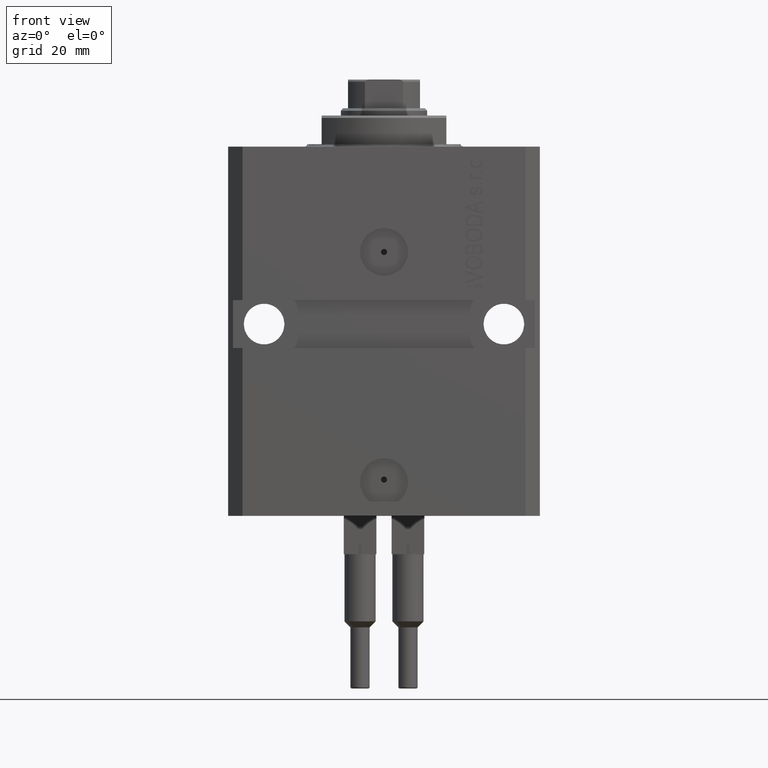
[diagram: clean part render]
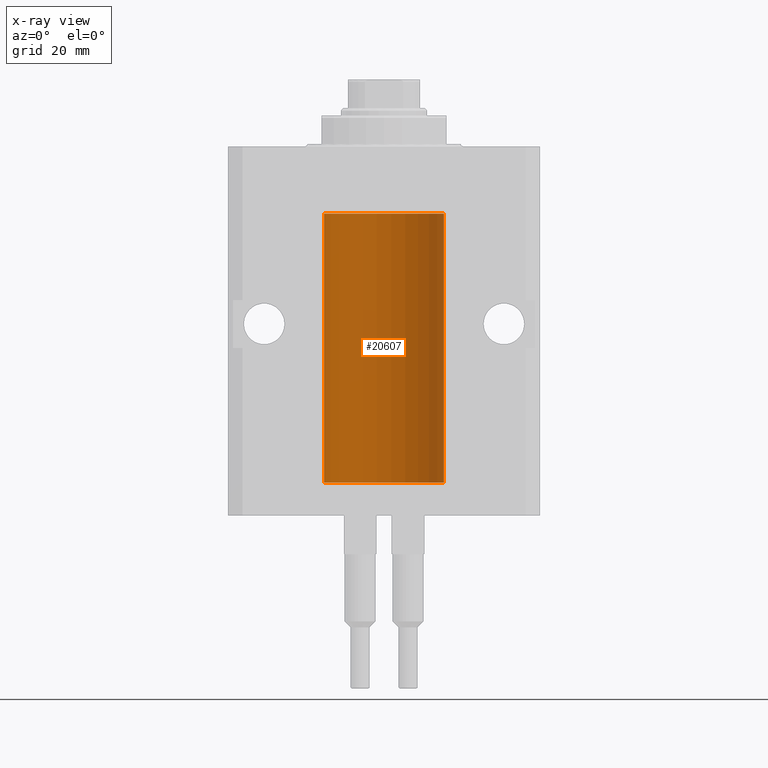
[diagram: x-ray — body ghosted, one internal face saturated and labeled with its STEP entity id]
A machine part, front view, then the same camera in x-ray: the body is ghosted and one INTERNAL B-rep face — a face not visible from any outside direction — is saturated and labeled: STEP entity #20607.
In plain terms, the highlighted cylindrical surface (partial cylindrical patch) has radius 12.5 mm, axis along (0, 0, 1).
Its self-contained STEP definition (entity closure, byte-faithful):
#1280 = CARTESIAN_POINT ( 'NONE',  ( 0.000000000000000000, 0.000000000000000000, -70.09999999999999432 ) ) ;
#1337 = ORIENTED_EDGE ( 'NONE', *, *, #8864, .T. ) ;
#1409 = LINE ( 'NONE', #16208, #19738 ) ;
#1751 = DIRECTION ( 'NONE',  ( 0.000000000000000000, 0.000000000000000000, 1.000000000000000000 ) ) ;
#2036 = CARTESIAN_POINT ( 'NONE',  ( -12.48436376893640265, 0.6250290278979918623, -65.08132082824472775 ) ) ;
#2481 = CARTESIAN_POINT ( 'NONE',  ( -12.48520330846397819, 0.6088355886774127201, -22.16325431852561323 ) ) ;
#2724 = CARTESIAN_POINT ( 'NONE',  ( -12.49999999999999289, 0.1631761135151241215, -22.62499999999984013 ) ) ;
#2888 = VERTEX_POINT ( 'NONE', #24095 ) ;
#3100 = EDGE_CURVE ( 'NONE', #44542, #43608, #25186, .T. ) ;
#4410 = DIRECTION ( 'NONE',  ( -0.000000000000000000, -0.000000000000000000, 1.000000000000000000 ) ) ;
#4714 = DIRECTION ( 'NONE',  ( 0.000000000000000000, 0.000000000000000000, 1.000000000000000000 ) ) ;
#4743 = DIRECTION ( 'NONE',  ( -0.000000000000000000, -0.000000000000000000, 1.000000000000000000 ) ) ;
#5681 = CARTESIAN_POINT ( 'NONE',  ( -12.48520330846398174, 0.6088355886774118320, -65.16325431852561678 ) ) ;
#6604 = CARTESIAN_POINT ( 'NONE',  ( -12.48436813453758454, 0.6249418250771192618, -21.83668996798922635 ) ) ;
#6836 = CARTESIAN_POINT ( 'NONE',  ( -12.50000000000000000, -2.089494013101375120E-17, -21.37499999999999645 ) ) ;
#8851 = ORIENTED_EDGE ( 'NONE', *, *, #41418, .F. ) ;
#8864 = EDGE_CURVE ( 'NONE', #30986, #21522, #27935, .T. ) ;
#9107 = DIRECTION ( 'NONE',  ( -0.000000000000000000, -0.000000000000000000, 1.000000000000000000 ) ) ;
#10098 = LINE ( 'NONE', #18841, #43342 ) ;
#10234 = CARTESIAN_POINT ( 'NONE',  ( -12.49915784441386890, 0.1636601911727947889, -21.39126818989430490 ) ) ;
#10976 = CARTESIAN_POINT ( 'NONE',  ( -12.49631005746706336, 0.3253680783018528255, -22.55856740465392463 ) ) ;
#11261 = CARTESIAN_POINT ( 'NONE',  ( 12.50000000000000000, 0.000000000000000000, -70.09999999999999432 ) ) ;
#11908 = AXIS2_PLACEMENT_3D ( 'NONE', #35782, #9107, #28510 ) ;
#11990 = DIRECTION ( 'NONE',  ( 1.000000000000000000, 0.000000000000000000, 0.000000000000000000 ) ) ;
#12945 = CARTESIAN_POINT ( 'NONE',  ( -12.49631005746706514, 0.3253680783018499389, -65.55856740465391397 ) ) ;
#13326 = LINE ( 'NONE', #20622, #25116 ) ;
#16075 = DIRECTION ( 'NONE',  ( 1.000000000000000000, 0.000000000000000000, 0.000000000000000000 ) ) ;
#16096 = EDGE_CURVE ( 'NONE', #44565, #30986, #45640, .T. ) ;
#16116 = CARTESIAN_POINT ( 'NONE',  ( -12.49625855304193500, 0.3150454781038046770, -64.45402800297485157 ) ) ;
#16208 = CARTESIAN_POINT ( 'NONE',  ( -12.50000000000000000, 1.530808498934191521E-15, -70.09999999999999432 ) ) ;
#16604 = CARTESIAN_POINT ( 'NONE',  ( -12.48436813453758809, 0.6249418250771181516, -64.83668996798922990 ) ) ;
#17065 = CARTESIAN_POINT ( 'NONE',  ( 12.50000000000000000, 0.000000000000000000, -13.99999999999999822 ) ) ;
#17272 = CARTESIAN_POINT ( 'NONE',  ( -12.50000000000017941, 3.883381646606358354E-13, -22.62500000000358824 ) ) ;
#17528 = ORIENTED_EDGE ( 'NONE', *, *, #44707, .F. ) ;
#17559 = EDGE_CURVE ( 'NONE', #44542, #21522, #13326, .T. ) ;
#17765 = CARTESIAN_POINT ( 'NONE',  ( -12.49011732893843529, 0.5003763274120274218, -22.38348111289287701 ) ) ;
#18263 = CARTESIAN_POINT ( 'NONE',  ( -12.49422197749724006, 0.3843754434364375916, -21.50047099568095277 ) ) ;
#18841 = CARTESIAN_POINT ( 'NONE',  ( -12.50000000000000000, 1.530808498934191521E-15, -70.09999999999999432 ) ) ;
#19257 = CARTESIAN_POINT ( 'NONE',  ( -12.50000000000000000, -2.089494013101375120E-17, -21.37499999999999645 ) ) ;
#19322 = CARTESIAN_POINT ( 'NONE',  ( -12.50000000000017941, 3.883381774819353300E-13, -65.62500000000359535 ) ) ;
#19546 = CARTESIAN_POINT ( 'NONE',  ( -12.50000000000017941, 3.883381774819353300E-13, -65.62500000000359535 ) ) ;
#19738 = VECTOR ( 'NONE', #35602, 1000.000000000000000 ) ;
#20007 = CARTESIAN_POINT ( 'NONE',  ( -12.49999999999999645, 0.08260426088728485550, -64.37499999999998579 ) ) ;
#20244 = CARTESIAN_POINT ( 'NONE',  ( -12.48810268015257741, 0.5573155909661293705, -64.67347410093867666 ) ) ;
#20607 = ADVANCED_FACE ( 'NONE', ( #39184 ), #46006, .F. ) ;
#20622 = CARTESIAN_POINT ( 'NONE',  ( -12.50000000000000000, 1.530808498934191521E-15, -70.09999999999999432 ) ) ;
#21280 = CIRCLE ( 'NONE', #34439, 12.50000000000000000 ) ;
#21522 = VERTEX_POINT ( 'NONE', #46306 ) ;
#24095 = CARTESIAN_POINT ( 'NONE',  ( -12.50000000000000000, -1.053276923642966949E-14, -64.37500000000000000 ) ) ;
#25116 = VECTOR ( 'NONE', #27426, 1000.000000000000000 ) ;
#25186 = B_SPLINE_CURVE_WITH_KNOTS ( 'NONE', 3,
 ( #6836, #43480, #10234, #28456, #18263, #39833, #6604, #25538, #2481, #36200, #17765, #10976, #2724, #28932 ),
 .UNSPECIFIED., .F., .F.,
 ( 4, 2, 2, 2, 2, 2, 4 ),
 ( 2.030551168097110502E-20, 0.0002442924852390969078, 0.0004885849704781938157, 0.0009771699409563880650, 0.001221462426195485135, 0.001465754911434582423, 0.001954339881912776130 ),
 .UNSPECIFIED. ) ;
#25538 = CARTESIAN_POINT ( 'NONE',  ( -12.48436376893640443, 0.6250290278979917513, -22.08132082824473486 ) ) ;
#26332 = B_SPLINE_CURVE_WITH_KNOTS ( 'NONE', 3,
 ( #34560, #20007, #34787, #16116, #38664, #20244, #16604, #2036, #5681, #38439, #46206, #12945, #27766, #19546 ),
 .UNSPECIFIED., .F., .F.,
 ( 4, 2, 2, 2, 2, 2, 4 ),
 ( 3.492495172846855184E-18, 0.0002442924852390798859, 0.0004885849704781563023, 0.0009771699409563386254, 0.001221462426195450658, 0.001465754911434562473, 0.001954339881912786538 ),
 .UNSPECIFIED. ) ;
#27141 = AXIS2_PLACEMENT_3D ( 'NONE', #32945, #4714, #11990 ) ;
#27426 = DIRECTION ( 'NONE',  ( -0.000000000000000000, -0.000000000000000000, 1.000000000000000000 ) ) ;
#27766 = CARTESIAN_POINT ( 'NONE',  ( -12.49999999999999822, 0.1631761135151225950, -65.62499999999985789 ) ) ;
#27935 = CIRCLE ( 'NONE', #27141, 12.50000000000000000 ) ;
#28456 = CARTESIAN_POINT ( 'NONE',  ( -12.49625855304193678, 0.3150454781038042329, -21.45402800297484802 ) ) ;
#28510 = DIRECTION ( 'NONE',  ( 1.000000000000000000, 0.000000000000000000, 0.000000000000000000 ) ) ;
#28932 = CARTESIAN_POINT ( 'NONE',  ( -12.50000000000017941, 3.883381646606358354E-13, -22.62500000000358824 ) ) ;
#29580 = EDGE_CURVE ( 'NONE', #2888, #43608, #10098, .T. ) ;
#29987 = ORIENTED_EDGE ( 'NONE', *, *, #17559, .F. ) ;
#30986 = VERTEX_POINT ( 'NONE', #17065 ) ;
#32945 = CARTESIAN_POINT ( 'NONE',  ( 0.000000000000000000, 0.000000000000000000, -13.99999999999999822 ) ) ;
#34439 = AXIS2_PLACEMENT_3D ( 'NONE', #1280, #1751, #16075 ) ;
#34560 = CARTESIAN_POINT ( 'NONE',  ( -12.50000000000000000, -1.053276923642966949E-14, -64.37500000000000000 ) ) ;
#34787 = CARTESIAN_POINT ( 'NONE',  ( -12.49915784441386890, 0.1636601911727943726, -64.39126818989430490 ) ) ;
#35244 = CARTESIAN_POINT ( 'NONE',  ( -12.50000000000000000, 1.530808498934191521E-15, -70.09999999999999432 ) ) ;
#35440 = VERTEX_POINT ( 'NONE', #19322 ) ;
#35602 = DIRECTION ( 'NONE',  ( -0.000000000000000000, -0.000000000000000000, 1.000000000000000000 ) ) ;
#35782 = CARTESIAN_POINT ( 'NONE',  ( 0.000000000000000000, 0.000000000000000000, -70.09999999999999432 ) ) ;
#36200 = CARTESIAN_POINT ( 'NONE',  ( -12.48809959379011403, 0.5462151254764975317, -22.31461370481611795 ) ) ;
#38388 = EDGE_LOOP ( 'NONE', ( #8851, #17528, #42653, #1337, #29987, #43852, #46296, #46856 ) ) ;
#38439 = CARTESIAN_POINT ( 'NONE',  ( -12.48809959379011580, 0.5462151254764966435, -65.31461370481613926 ) ) ;
#38664 = CARTESIAN_POINT ( 'NONE',  ( -12.49422197749724361, 0.3843754434364307082, -64.50047099568097053 ) ) ;
#39184 = FACE_OUTER_BOUND ( 'NONE', #38388, .T. ) ;
#39833 = CARTESIAN_POINT ( 'NONE',  ( -12.48810268015257563, 0.5573155909661349217, -21.67347410093867666 ) ) ;
#41418 = EDGE_CURVE ( 'NONE', #45556, #35440, #1409, .T. ) ;
#42238 = CARTESIAN_POINT ( 'NONE',  ( 12.50000000000000000, 0.000000000000000000, -70.09999999999999432 ) ) ;
#42653 = ORIENTED_EDGE ( 'NONE', *, *, #16096, .T. ) ;
#43342 = VECTOR ( 'NONE', #4743, 1000.000000000000000 ) ;
#43480 = CARTESIAN_POINT ( 'NONE',  ( -12.50000000000000000, 0.08260426088729219685, -21.37500000000000000 ) ) ;
#43608 = VERTEX_POINT ( 'NONE', #17272 ) ;
#43852 = ORIENTED_EDGE ( 'NONE', *, *, #3100, .T. ) ;
#44457 = VECTOR ( 'NONE', #4410, 1000.000000000000000 ) ;
#44542 = VERTEX_POINT ( 'NONE', #19257 ) ;
#44565 = VERTEX_POINT ( 'NONE', #11261 ) ;
#44707 = EDGE_CURVE ( 'NONE', #44565, #45556, #21280, .T. ) ;
#45556 = VERTEX_POINT ( 'NONE', #35244 ) ;
#45640 = LINE ( 'NONE', #42238, #44457 ) ;
#46006 = CYLINDRICAL_SURFACE ( 'NONE', #11908, 12.50000000000000000 ) ;
#46206 = CARTESIAN_POINT ( 'NONE',  ( -12.49011732893843885, 0.5003763274120245352, -65.38348111289289477 ) ) ;
#46296 = ORIENTED_EDGE ( 'NONE', *, *, #29580, .F. ) ;
#46306 = CARTESIAN_POINT ( 'NONE',  ( -12.50000000000000000, 1.530808498934191521E-15, -13.99999999999999822 ) ) ;
#46856 = ORIENTED_EDGE ( 'NONE', *, *, #47889, .T. ) ;
#47889 = EDGE_CURVE ( 'NONE', #2888, #35440, #26332, .T. ) ;